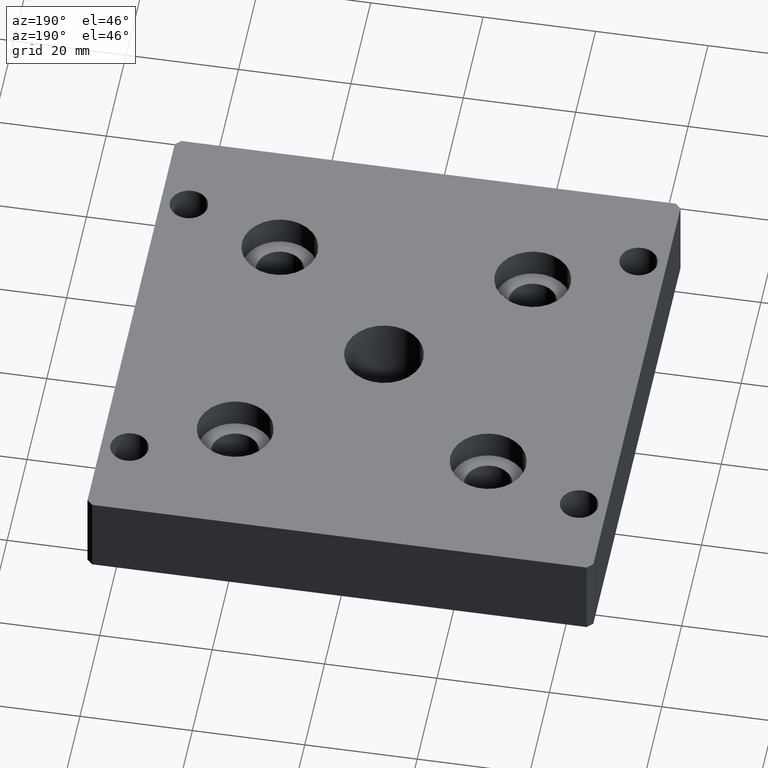
[diagram: clean part render]
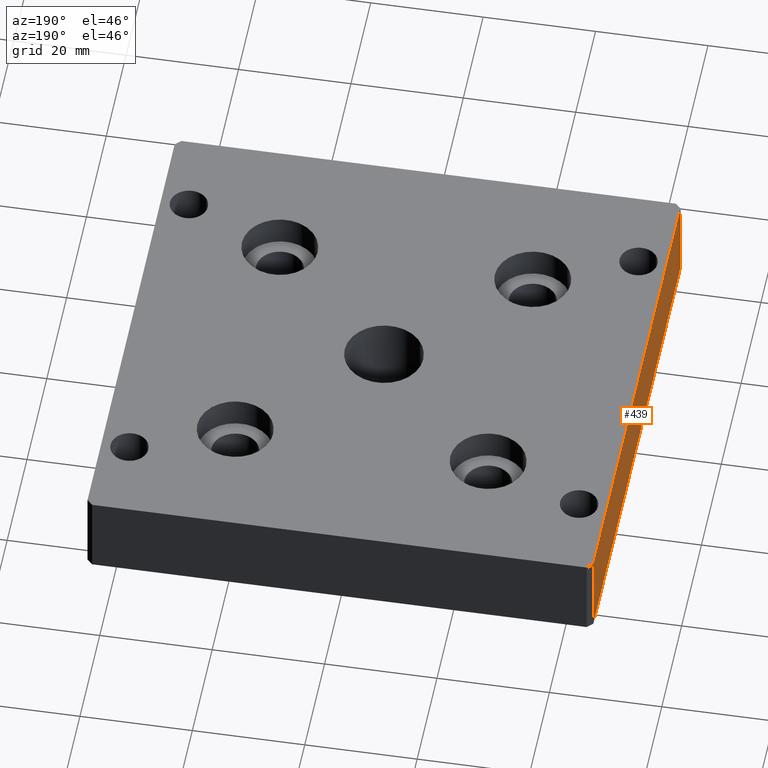
[diagram: same view with one face highlighted and labeled with its STEP entity id]
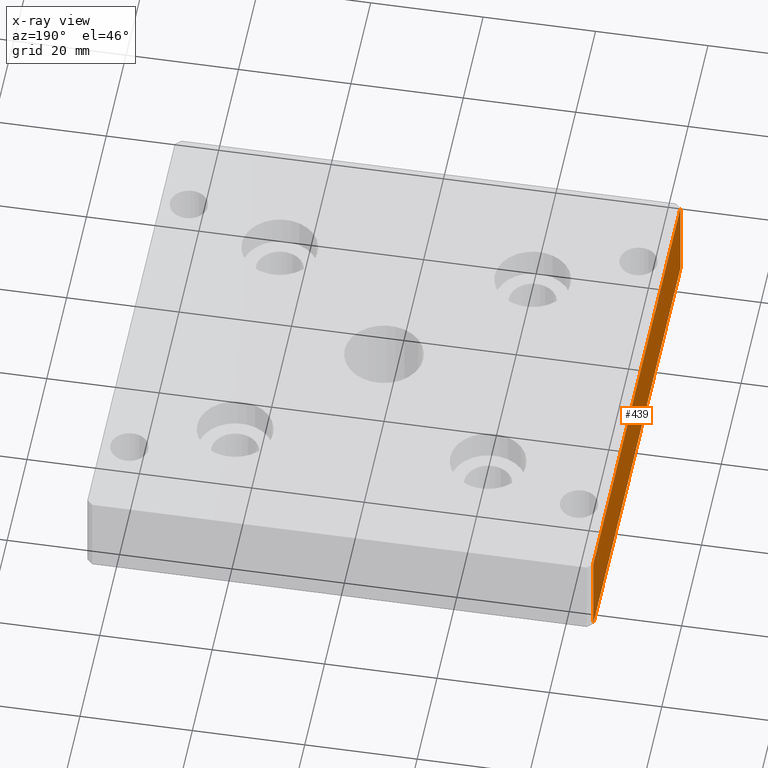
[diagram: x-ray of the same camera — body ghosted, the highlighted face saturated]
A machine part, auxiliary view. The second image highlights one B-rep face of the part: STEP entity #439.
The next image is the same camera in x-ray: the body ghosted, the highlighted face saturated — about 0% of this face is hidden behind the body in this view.
In plain terms, the highlighted planar face has unit normal (1, 0, 0).
Its self-contained STEP definition (entity closure, byte-faithful):
#96=FACE_OUTER_BOUND('',#123,.T.);
#123=EDGE_LOOP('',(#346,#347,#348,#349));
#178=LINE('',#650,#202);
#198=LINE('',#690,#222);
#200=LINE('',#693,#224);
#201=LINE('',#694,#225);
#202=VECTOR('',#518,15.);
#222=VECTOR('',#550,15.);
#224=VECTOR('',#554,87.999999999648);
#225=VECTOR('',#555,87.999999999648);
#226=VERTEX_POINT('',#648);
#227=VERTEX_POINT('',#649);
#240=VERTEX_POINT('',#687);
#241=VERTEX_POINT('',#689);
#268=EDGE_CURVE('',#226,#227,#178,.T.);
#288=EDGE_CURVE('',#241,#240,#198,.T.);
#290=EDGE_CURVE('',#240,#227,#200,.T.);
#291=EDGE_CURVE('',#241,#226,#201,.T.);
#346=ORIENTED_EDGE('',*,*,#288,.T.);
#347=ORIENTED_EDGE('',*,*,#290,.T.);
#348=ORIENTED_EDGE('',*,*,#268,.F.);
#349=ORIENTED_EDGE('',*,*,#291,.F.);
#425=PLANE('',#468);
#439=ADVANCED_FACE('',(#96),#425,.F.);
#468=AXIS2_PLACEMENT_3D('',#692,#552,#553);
#518=DIRECTION('',(0.,0.,-1.));
#550=DIRECTION('',(0.,0.,-1.));
#552=DIRECTION('center_axis',(1.,0.,0.));
#553=DIRECTION('ref_axis',(0.,0.,-1.));
#554=DIRECTION('',(0.,-1.,0.));
#555=DIRECTION('',(0.,-1.,0.));
#648=CARTESIAN_POINT('',(-44.9999999998199,-43.999999999824,0.));
#649=CARTESIAN_POINT('',(-44.9999999998199,-43.999999999824,-15.));
#650=CARTESIAN_POINT('',(-44.9999999998199,-43.999999999824,0.));
#687=CARTESIAN_POINT('',(-44.9999999998199,43.999999999824,-15.));
#689=CARTESIAN_POINT('',(-44.9999999998199,43.999999999824,0.));
#690=CARTESIAN_POINT('',(-44.9999999998199,43.999999999824,0.));
#692=CARTESIAN_POINT('Origin',(-44.9999999998199,43.999999999824,0.));
#693=CARTESIAN_POINT('',(-44.9999999998199,43.999999999824,-15.));
#694=CARTESIAN_POINT('',(-44.9999999998199,43.999999999824,0.));